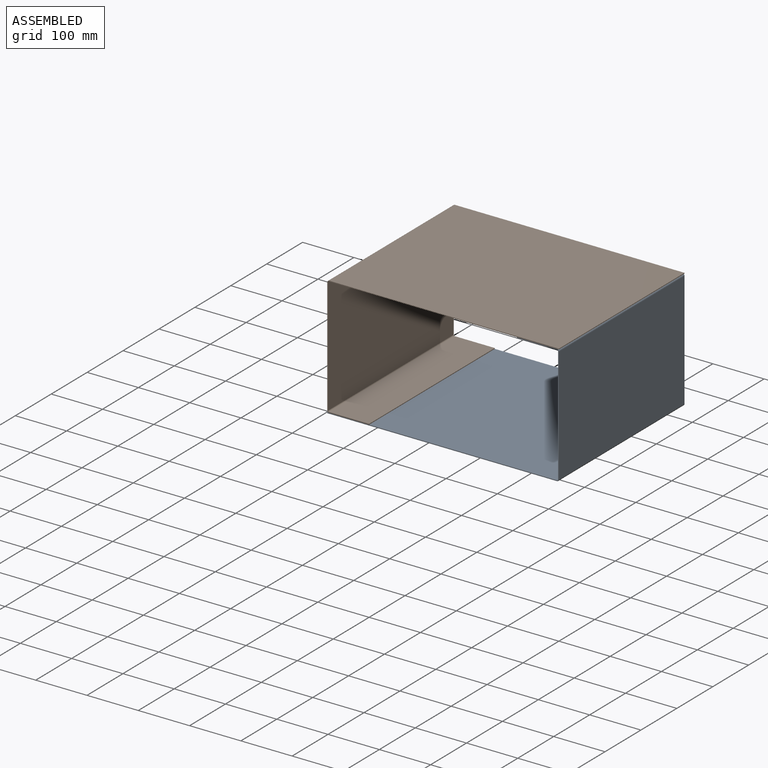
[diagram: assembled view]
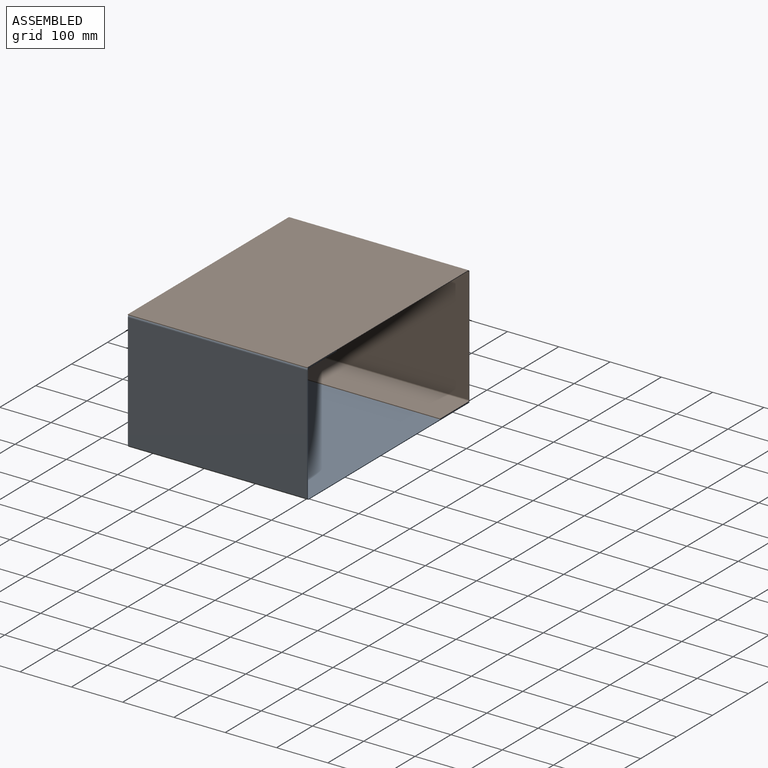
[diagram: assembled view, second angle]
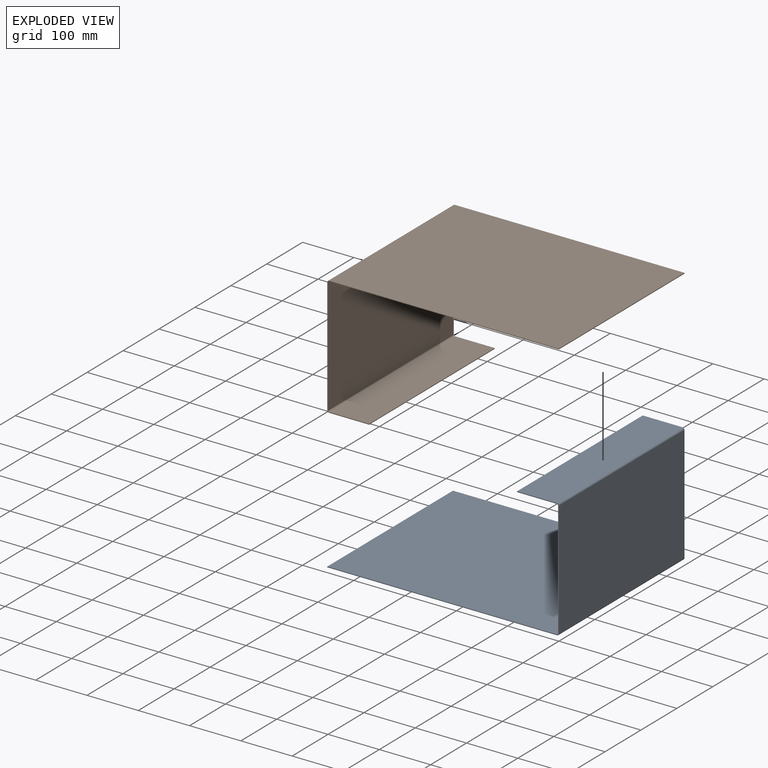
[diagram: exploded view]
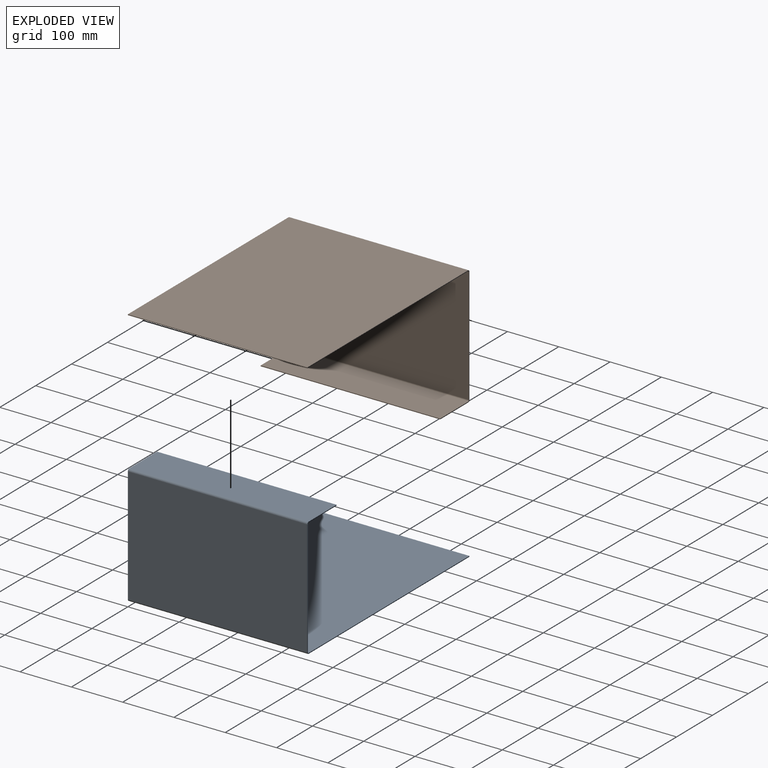
[diagram: exploded view, second angle]
ASSEMBLY  parts=2 mates=2
PART A: 22 faces, bbox 451.5x350x233 mm
  f0: plane 447.7x1.5mm, normal (0,-1,0), area 671.5mm2, adj f2,f3,f4,f19
  f1: plane 447.7x1.5mm, normal (0,1,0), area 671.5mm2, adj f2,f3,f4,f18
  f2: plane 350x1.5mm, normal (1,0,0), area 525mm2, adj f0,f1,f3,f4
  f3: plane 447.7x350mm, normal (0,0,-1), area 156695mm2, adj f0,f1,f2,f21
  f4: plane 447.7x350mm, normal (0,0,1), area 156695mm2, adj f0,f1,f2,f20
  f5: plane 225.4x1.5mm, normal (0,-1,0), area 338.1mm2, adj f7,f8,f15,f19
  f6: plane 225.4x1.5mm, normal (0,1,0), area 338.1mm2, adj f7,f8,f14,f18
  f7: plane 350x225.4mm, normal (1,0,0), area 78890mm2, adj f5,f6,f17,f21
  f8: plane 350x225.4mm, normal (-1,0,0), area 78890mm2, adj f5,f6,f16,f20
  f9: plane 77.7x1.5mm, normal (0,-1,0), area 116.6mm2, adj f10,f12,f13,f15
  f10: plane 350x1.5mm, normal (1,0,0), area 525mm2, adj f9,f11,f12,f13
  f11: plane 77.7x1.5mm, normal (0,1,0), area 116.6mm2, adj f10,f12,f13,f14
  f12: plane 350x77.7mm, normal (0,0,1), area 27195mm2, adj f9,f10,f11,f17
  f13: plane 350x77.7mm, normal (0,0,-1), area 27195mm2, adj f9,f10,f11,f16
  f14: plane 3.8x3.8mm, normal (0,1,0), area 7.2mm2, adj f6,f11,f16,f17
  f15: plane 3.8x3.8mm, normal (0,-1,0), area 7.2mm2, adj f5,f9,f16,f17
  f16: cylinder r=3.8mm len=350mm, axis (0,1,0), area 2089.2mm2, adj f8,f13,f14,f15
  f17: cylinder r=2.3mm len=350mm, axis (0,1,0), area 1264.5mm2, adj f7,f12,f14,f15
  f18: plane 3.8x3.8mm, normal (0,1,0), area 7.2mm2, adj f1,f6,f20,f21
  f19: plane 3.8x3.8mm, normal (0,-1,0), area 7.2mm2, adj f0,f5,f20,f21
  f20: cylinder r=3.8mm len=350mm, axis (0,1,0), area 2089.2mm2, adj f4,f8,f18,f19
  f21: cylinder r=2.3mm len=350mm, axis (0,1,0), area 1264.5mm2, adj f3,f7,f18,f19
PART B: same geometry as A
PLACE A rot(axis=(0,1,0),180deg) t=(-451.5,0,-231.5)mm
PLACE B at identity
MATE parallel A.f8 <-> B.f2  axis (1,0,0) through (0,175,-116.5)mm
MATE parallel A.f3 <-> B.f13  axis (0,0,1) through (-227.65,175,-231.5)mm
